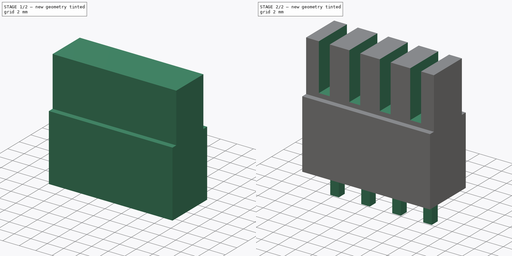
[diagram: build sequence overview — one tinted view per stage of 2, left to right]
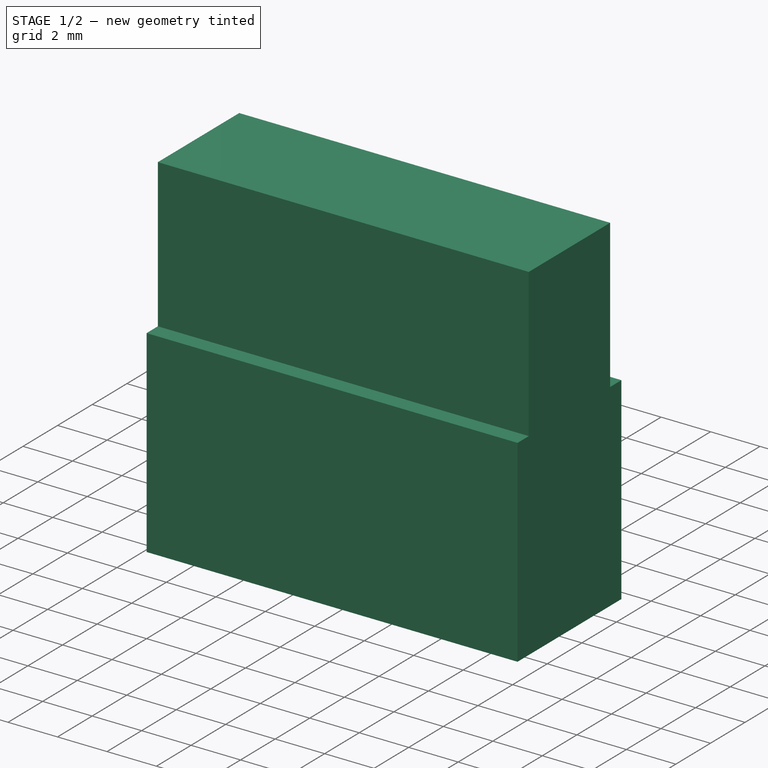
[diagram: stage 1 of 2 — iso view after this stage's code; geometry added in this stage tinted green]
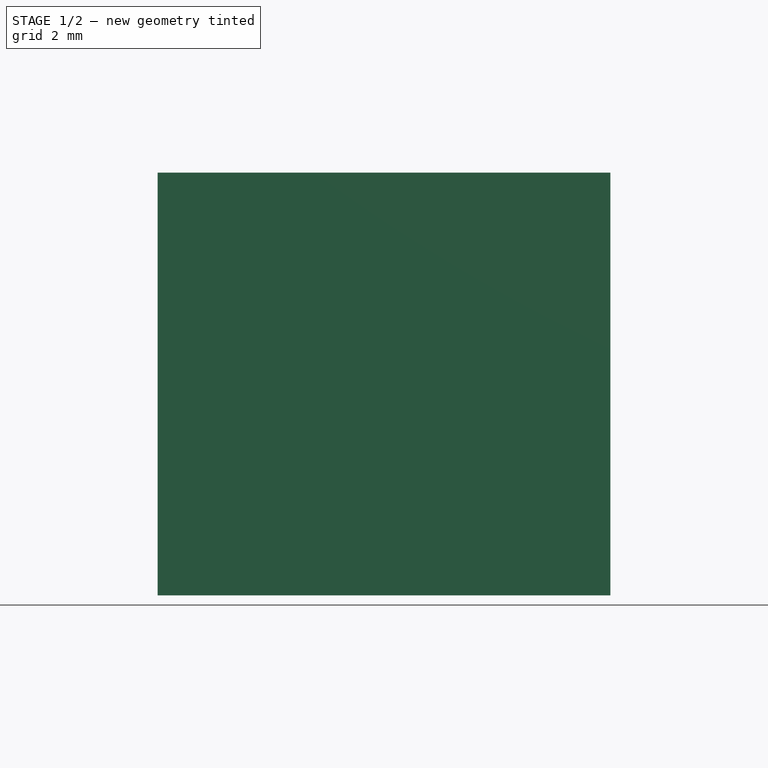
[diagram: stage 1 of 2 — front view after this stage's code; geometry added in this stage tinted green]
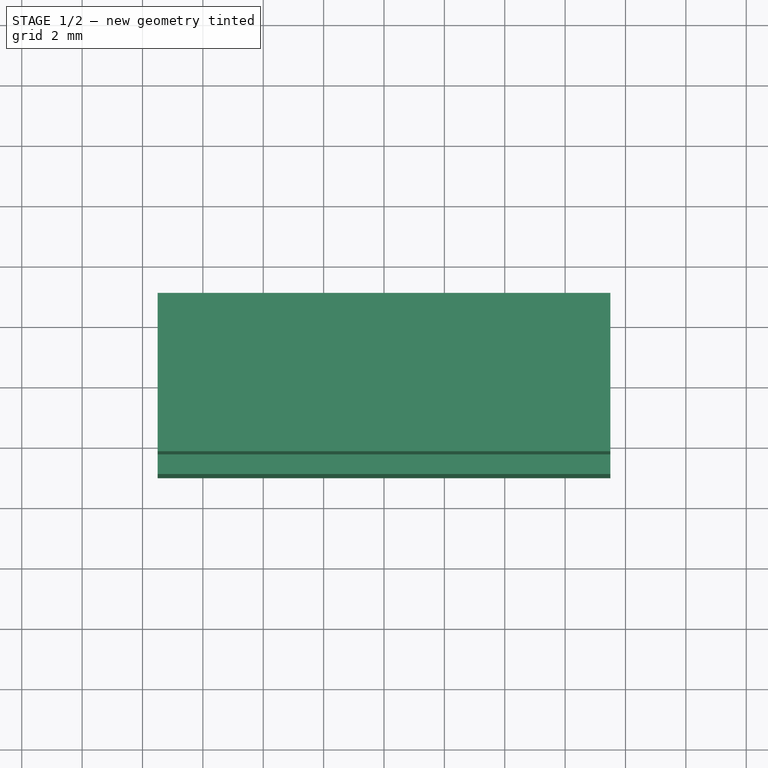
[diagram: stage 1 of 2 — top view after this stage's code; geometry added in this stage tinted green]
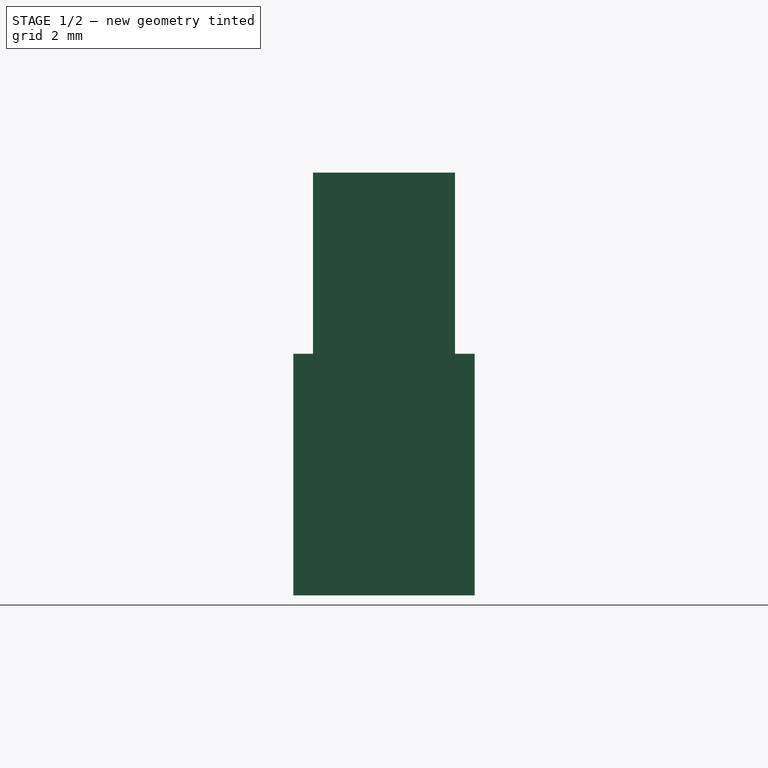
[diagram: stage 1 of 2 — right view after this stage's code; geometry added in this stage tinted green]
FCSTD DOCUMENT  (FreeCAD 0.19R24276 (Git))
Label: idc-lsa-connector
License: All rights reserved
LicenseURL: http://en.wikipedia.org/wiki/All_rights_reserved
objects: Sketcher::SketchObject×4, PartDesign::Pad×3, PartDesign::Pocket×1, PartDesign::Body×1
note: 13 computed .brp shape members not serialized (recipe doc carries the construction recipe); baked Part::Feature solids carry a one-line shape summary decoded from their .brp

FEATURE [Sketcher::SketchObject] Sketch  label="base"
  FullyConstrained = true
  MapMode = 5
  Support = -> [XY_Plane]
  sketch-geometry (4):
    g0: LineSegment StartX=-7.5 StartY=3 StartZ=0 EndX=7.5 EndY=3 EndZ=0
    g1: LineSegment StartX=7.5 StartY=3 StartZ=0 EndX=7.5 EndY=-3 EndZ=0
    g2: LineSegment StartX=7.5 StartY=-3 StartZ=0 EndX=-7.5 EndY=-3 EndZ=0
    g3: LineSegment StartX=-7.5 StartY=-3 StartZ=0 EndX=-7.5 EndY=3 EndZ=0
  constraints (12):
    c: Coincident(g0,g1)
    c: Coincident(g1,g2)
    c: Coincident(g2,g3)
    c: Coincident(g3,g0)
    c: Horizontal(g0)
    c: Horizontal(g2)
    c: Vertical(g1)
    c: Vertical(g3)
    c: DistanceY(g-1,g0) = 3
    c: DistanceY(g1,g-1) = 3
    c: DistanceX(g-1,g0) = 7.5
    c: DistanceX(g0,g-1) = 7.5
FEATURE [PartDesign::Pad] Pad  label="base_pad"
  Direction = (1,1,1)
  Length = 8
  Length2 = 100
  Profile = -> Sketch
  Type = 0
FEATURE [Sketcher::SketchObject] Sketch001  label="top"
  FullyConstrained = true
  MapMode = 5
  Placement = pos=(0,0,8) rot=(0,0,1;0rad)
  Support = -> [Pad]
  sketch-geometry (4):
    g0: LineSegment StartX=-7.5 StartY=2.35 StartZ=0 EndX=7.5 EndY=2.35 EndZ=0
    g1: LineSegment StartX=7.5 StartY=2.35 StartZ=0 EndX=7.5 EndY=-2.35 EndZ=0
    g2: LineSegment StartX=7.5 StartY=-2.35 StartZ=0 EndX=-7.5 EndY=-2.35 EndZ=0
    g3: LineSegment StartX=-7.5 StartY=-2.35 StartZ=0 EndX=-7.5 EndY=2.35 EndZ=0
  constraints (12):
    c: Coincident(g0,g1)
    c: Coincident(g1,g2)
    c: Coincident(g2,g3)
    c: Coincident(g3,g0)
    c: Horizontal(g0)
    c: Horizontal(g2)
    c: Vertical(g1)
    c: Vertical(g3)
    c: DistanceY(g-1,g0) = 2.35
    c: DistanceY(g1,g-1) = 2.35
    c: DistanceX(g-1,g0) = 7.5
    c: DistanceX(g0,g-1) = 7.5
FEATURE [PartDesign::Pad] Pad001  label="top_pad"
  BaseFeature = -> Pad
  Direction = (1,1,1)
  Length = 6
  Length2 = 100
  Profile = -> Sketch001
  Type = 0
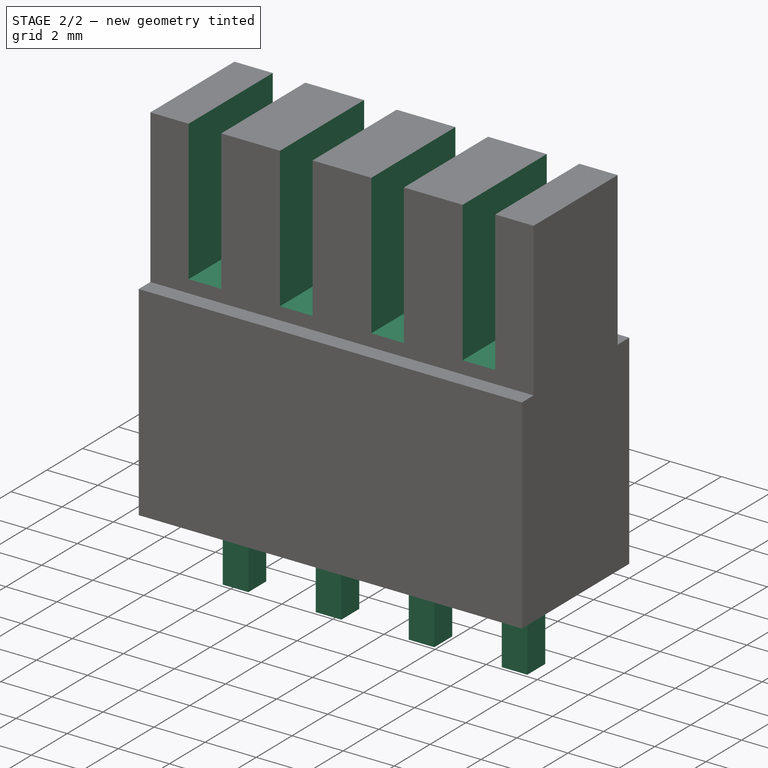
[diagram: stage 2 of 2 — iso view after this stage's code; geometry added in this stage tinted green]
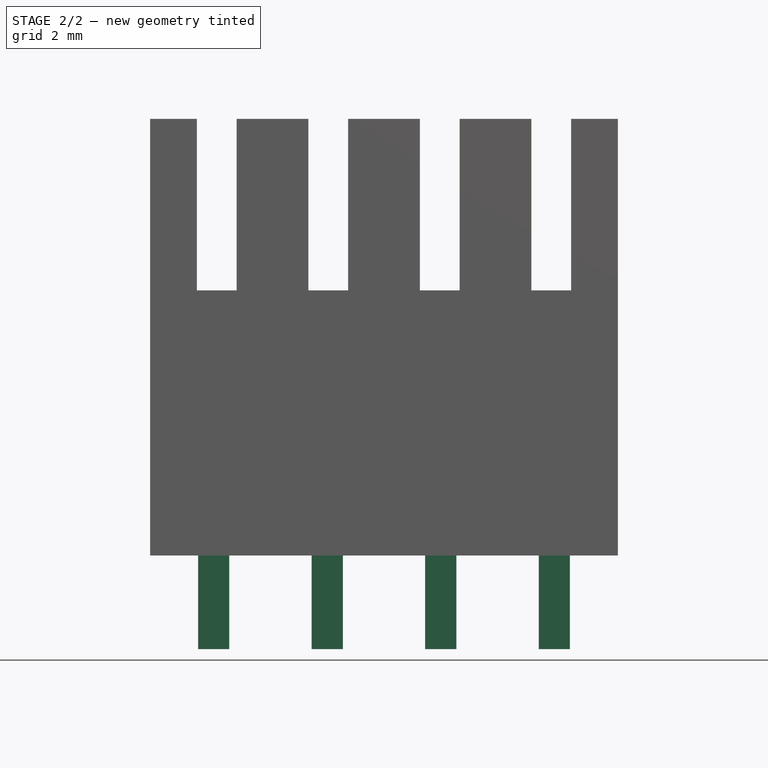
[diagram: stage 2 of 2 — front view after this stage's code; geometry added in this stage tinted green]
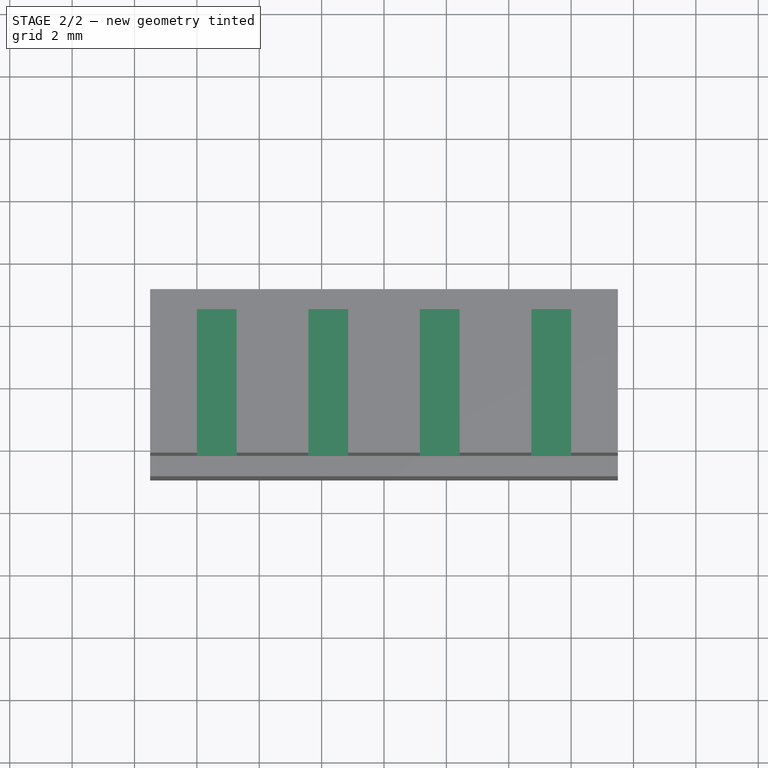
[diagram: stage 2 of 2 — top view after this stage's code; geometry added in this stage tinted green]
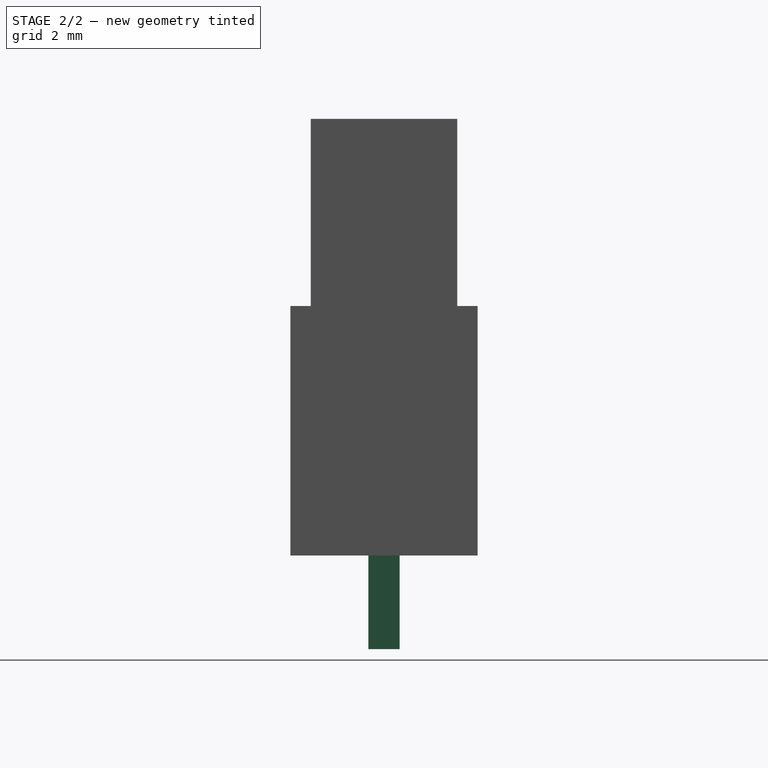
[diagram: stage 2 of 2 — right view after this stage's code; geometry added in this stage tinted green]
FEATURE [Sketcher::SketchObject] Sketch003  label="connector_hole"
  FullyConstrained = true
  MapMode = 5
  Placement = pos=(0,0,14) rot=(0,0,1;0rad)
  Support = -> [Pad001]
  sketch-geometry (16):
    g0: LineSegment StartX=1.15 StartY=2.35 StartZ=0 EndX=2.425 EndY=2.35 EndZ=0
    g1: LineSegment StartX=2.425 StartY=2.35 StartZ=0 EndX=2.425 EndY=-2.35 EndZ=0
    g2: LineSegment StartX=2.425 StartY=-2.35 StartZ=0 EndX=1.15 EndY=-2.35 EndZ=0
    g3: LineSegment StartX=1.15 StartY=-2.35 StartZ=0 EndX=1.15 EndY=2.35 EndZ=0
    g4: LineSegment StartX=4.725 StartY=2.35 StartZ=0 EndX=6 EndY=2.35 EndZ=0
    g5: LineSegment StartX=6 StartY=2.35 StartZ=0 EndX=6 EndY=-2.35 EndZ=0
    g6: LineSegment StartX=6 StartY=-2.35 StartZ=0 EndX=4.725 EndY=-2.35 EndZ=0
    g7: LineSegment StartX=4.725 StartY=-2.35 StartZ=0 EndX=4.725 EndY=2.35 EndZ=0
    g8: LineSegment StartX=-2.425 StartY=2.35 StartZ=0 EndX=-1.15 EndY=2.35 EndZ=0
    g9: LineSegment StartX=-1.15 StartY=2.35 StartZ=0 EndX=-1.15 EndY=-2.35 EndZ=0
    g10: LineSegment StartX=-1.15 StartY=-2.35 StartZ=0 EndX=-2.425 EndY=-2.35 EndZ=0
    g11: LineSegment StartX=-2.425 StartY=-2.35 StartZ=0 EndX=-2.425 EndY=2.35 EndZ=0
    g12: LineSegment StartX=-6 StartY=2.35 StartZ=0 EndX=-4.725 EndY=2.35 EndZ=0
    g13: LineSegment StartX=-4.725 StartY=2.35 StartZ=0 EndX=-4.725 EndY=-2.35 EndZ=0
    g14: LineSegment StartX=-4.725 StartY=-2.35 StartZ=0 EndX=-6 EndY=-2.35 EndZ=0
    g15: LineSegment StartX=-6 StartY=-2.35 StartZ=0 EndX=-6 EndY=2.35 EndZ=0
  constraints (48):
    c: Coincident(g0,g1)
    c: Coincident(g1,g2)
    c: Coincident(g2,g3)
    c: Coincident(g3,g0)
    c: Horizontal(g0)
    c: Horizontal(g2)
    c: Vertical(g1)
    c: Vertical(g3)
    c: DistanceY(g-1,g0) = 2.35
    c: DistanceY(g1,g-1) = 2.35
    c: DistanceX(g0,g0) = 1.275
    c: DistanceX(g-1,g0) = 1.15
    c: Coincident(g4,g5)
    c: Coincident(g5,g6)
    c: Coincident(g6,g7)
    c: Coincident(g7,g4)
    c: Horizontal(g4)
    c: Horizontal(g6)
    c: Vertical(g5)
    c: Vertical(g7)
    c: DistanceY(g-1,g4) = 2.35
    c: DistanceY(g6,g-1) = 2.35
    c: DistanceX(g4,g4) = 1.275
    c: DistanceX(g-1,g4) = 4.725
    c: Coincident(g8,g9)
    c: Coincident(g9,g10)
    c: Coincident(g10,g11)
    c: Coincident(g11,g8)
    c: Horizontal(g8)
    c: Horizontal(g10)
    c: Vertical(g9)
    c: Vertical(g11)
    c: DistanceY(g-1,g8) = 2.35
    c: DistanceY(g9,g-1) = 2.35
    c: DistanceX(g8,g-1) = 1.15
    c: DistanceX(g8,g8) = 1.275
    c: Coincident(g12,g13)
    c: Coincident(g13,g14)
    c: Coincident(g14,g15)
    c: Coincident(g15,g12)
    c: Horizontal(g12)
    c: Horizontal(g14)
    c: Vertical(g13)
    c: Vertical(g15)
    c: DistanceY(g-1,g12) = 2.35
    c: DistanceY(g13,g-1) = 2.35
    c: DistanceX(g12,g-1) = 4.725
    c: DistanceX(g12,g12) = 1.275
FEATURE [PartDesign::Pocket] Pocket  label="connector_hole_pocket"
  BaseFeature = -> Pad001
  Length = 5.5
  Length2 = 100
  Profile = -> Sketch003
  Type = 0
FEATURE [Sketcher::SketchObject] Sketch004  label="pins"
  FullyConstrained = true
  MapMode = 5
  Placement = pos=(0,0,0) rot=(1,0,0;3.14159rad)
  Support = -> [Pocket]
  sketch-geometry (16):
    g0: LineSegment StartX=-2.32 StartY=0.5 StartZ=0 EndX=-1.32 EndY=0.5 EndZ=0
    g1: LineSegment StartX=-1.32 StartY=0.5 StartZ=0 EndX=-1.32 EndY=-0.5 EndZ=0
    g2: LineSegment StartX=-1.32 StartY=-0.5 StartZ=0 EndX=-2.32 EndY=-0.5 EndZ=0
    g3: LineSegment StartX=-2.32 StartY=-0.5 StartZ=0 EndX=-2.32 EndY=0.5 EndZ=0
    g4: LineSegment StartX=-5.96 StartY=0.5 StartZ=0 EndX=-4.96 EndY=0.5 EndZ=0
    g5: LineSegment StartX=-4.96 StartY=0.5 StartZ=0 EndX=-4.96 EndY=-0.5 EndZ=0
    g6: LineSegment StartX=-4.96 StartY=-0.5 StartZ=0 EndX=-5.96 EndY=-0.5 EndZ=0
    g7: LineSegment StartX=-5.96 StartY=-0.5 StartZ=0 EndX=-5.96 EndY=0.5 EndZ=0
    g8: LineSegment StartX=2.32 StartY=-0.5 StartZ=0 EndX=1.32 EndY=-0.5 EndZ=0
    g9: LineSegment StartX=1.32 StartY=-0.5 StartZ=0 EndX=1.32 EndY=0.5 EndZ=0
    g10: LineSegment StartX=1.32 StartY=0.5 StartZ=0 EndX=2.32 EndY=0.5 EndZ=0
    g11: LineSegment StartX=2.32 StartY=0.5 StartZ=0 EndX=2.32 EndY=-0.5 EndZ=0
    g12: LineSegment StartX=4.96 StartY=0.5 StartZ=0 EndX=5.96 EndY=0.5 EndZ=0
    g13: LineSegment StartX=5.96 StartY=0.5 StartZ=0 EndX=5.96 EndY=-0.5 EndZ=0
    g14: LineSegment StartX=5.96 StartY=-0.5 StartZ=0 EndX=4.96 EndY=-0.5 EndZ=0
    g15: LineSegment StartX=4.96 StartY=-0.5 StartZ=0 EndX=4.96 EndY=0.5 EndZ=0
  constraints (48):
    c: Coincident(g0,g1)
    c: Coincident(g1,g2)
    c: Coincident(g2,g3)
    c: Coincident(g3,g0)
    c: Horizontal(g0)
    c: Horizontal(g2)
    c: Vertical(g1)
    c: Vertical(g3)
    c: DistanceX(g0,g0) = 1
    c: DistanceY(g3,g3) = 1
    c: DistanceY(g-1,g0) = 0.5
    c: DistanceX(g1,g-1) = 1.32
    c: Coincident(g4,g5)
    c: Coincident(g5,g6)
    c: Coincident(g6,g7)
    c: Coincident(g7,g4)
    c: Horizontal(g4)
    c: Horizontal(g6)
    c: Vertical(g5)
    c: Vertical(g7)
    c: DistanceX(g4,g4) = 1
    c: DistanceY(g5,g5) = 1
    c: DistanceY(g-1,g4) = 0.5
    c: DistanceX(g4,g0) = 2.64
    c: Coincident(g8,g9)
    c: Coincident(g9,g10)
    c: Coincident(g10,g11)
    c: Coincident(g11,g8)
    c: Horizontal(g8)
    c: Horizontal(g10)
    c: Vertical(g9)
    c: Vertical(g11)
    c: DistanceX(g10,g10) = 1
    c: DistanceY(g11,g11) = 1
    c: DistanceY(g-1,g9) = 0.5
    c: DistanceX(g-1,g9) = 1.32
    c: Coincident(g12,g13)
    c: Coincident(g13,g14)
    c: Coincident(g14,g15)
    c: Coincident(g15,g12)
    c: Horizontal(g12)
    c: Horizontal(g14)
    c: Vertical(g13)
    c: Vertical(g15)
    c: DistanceX(g12,g12) = 1
    c: DistanceY(g15,g15) = 1
    c: DistanceY(g-1,g12) = 0.5
    c: DistanceX(g10,g12) = 2.64
FEATURE [PartDesign::Pad] Pad002  label="pins_pad"
  BaseFeature = -> Pocket
  Direction = (1,1,1)
  Length = 3
  Length2 = 100
  Profile = -> Sketch004
  Type = 0
FEATURE [PartDesign::Body] Body
  Group = -> [Sketch,Pad,Sketch001,Pad001,Sketch003,Pocket,Sketch004,Pad002]
  Origin = -> Origin
  Tip = -> Pad002
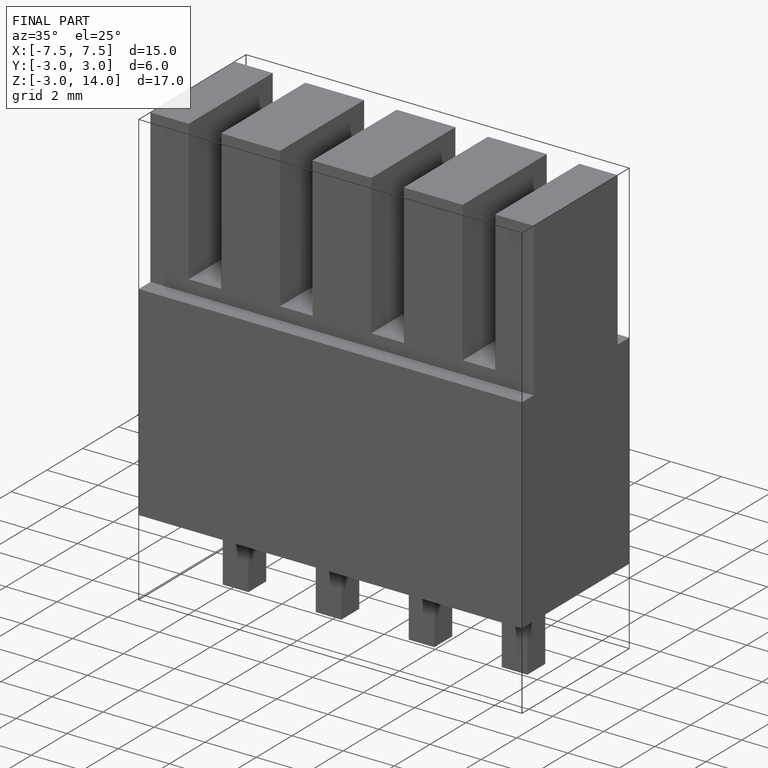
[diagram: finished part — iso view with bounding-box wireframe]
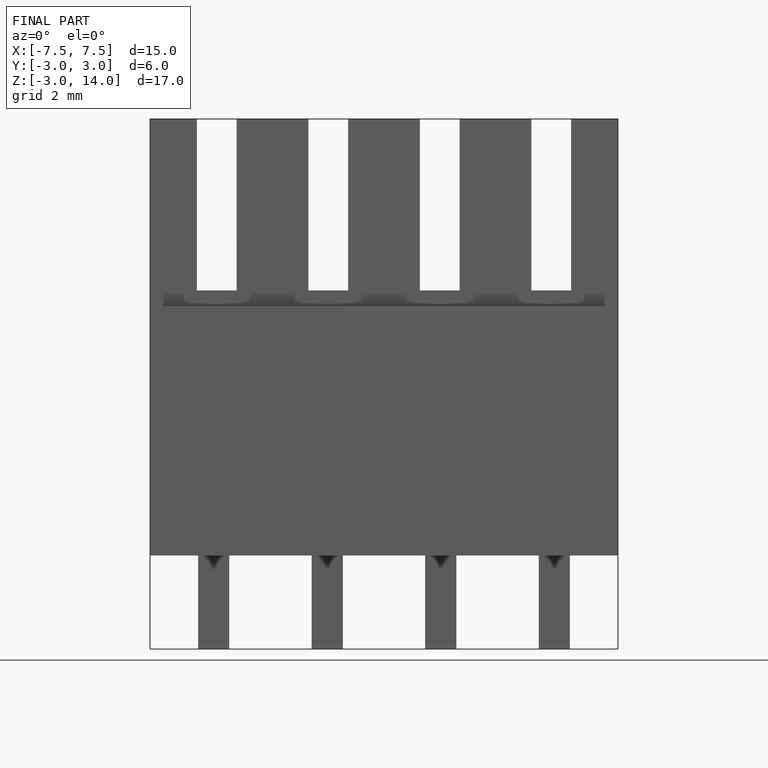
[diagram: finished part — front view with bounding-box wireframe]
